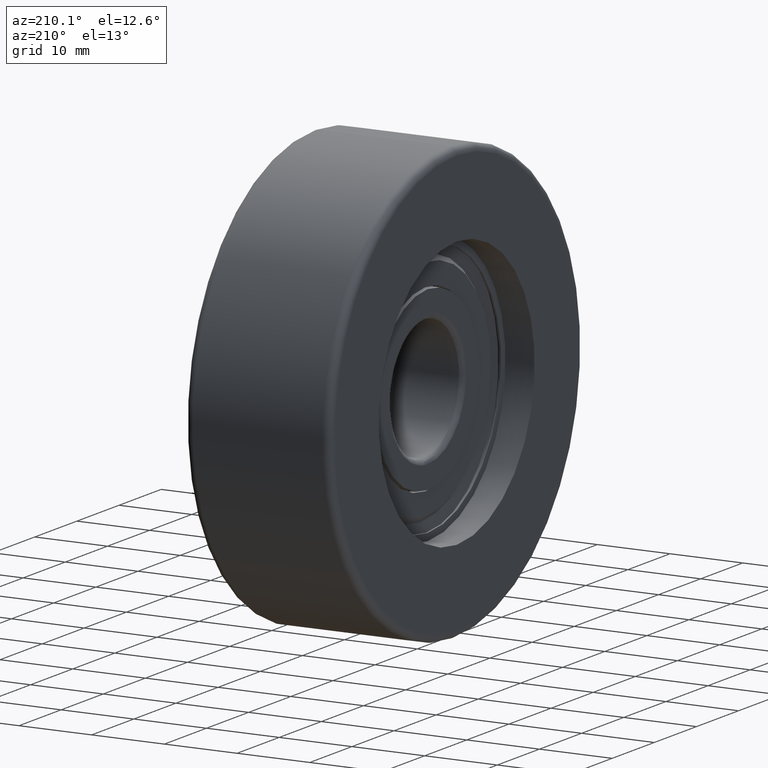
[diagram: clean part render]
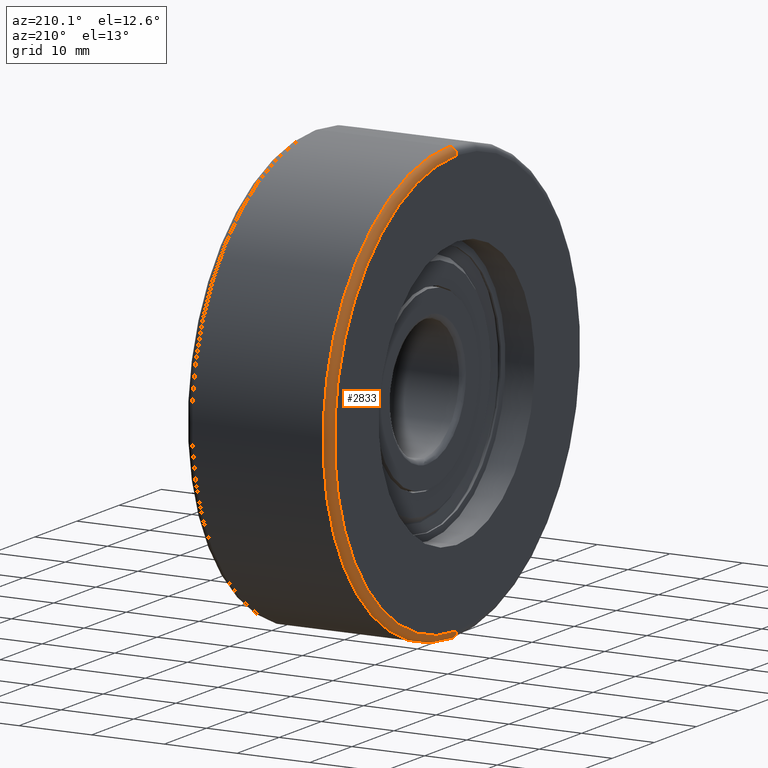
[diagram: same view with one face highlighted and labeled with its STEP entity id]
A machine part, auxiliary view. The second image highlights one B-rep face of the part: STEP entity #2833.
In plain terms, the highlighted toroidal blend (fillet) surface has major radius 29 mm and minor (blend) radius 1 mm.
Its self-contained STEP definition (entity closure, byte-faithful):
#85 = DIRECTION ( 'NONE',  ( -1.000000000000000000, -0.0000000000000000000, -0.0000000000000000000 ) ) ;
#118 = CIRCLE ( 'NONE', #4638, 28.99999999999999600 ) ;
#383 = AXIS2_PLACEMENT_3D ( 'NONE', #3193, #4908, #4460 ) ;
#483 = DIRECTION ( 'NONE',  ( 1.000000000000000000, 0.0000000000000000000, 0.0000000000000000000 ) ) ;
#544 = CARTESIAN_POINT ( 'NONE',  ( 0.0000000000000000000, 0.0000000000000000000, -28.99999999999999600 ) ) ;
#794 = CIRCLE ( 'NONE', #2465, 1.000000000000000900 ) ;
#857 = TOROIDAL_SURFACE ( 'NONE', #1578, 28.99999999999999600, 1.000000000000000000 ) ;
#948 = ORIENTED_EDGE ( 'NONE', *, *, #1405, .T. ) ;
#953 = DIRECTION ( 'NONE',  ( 0.0000000000000000000, 0.0000000000000000000, -1.000000000000000000 ) ) ;
#1405 = EDGE_CURVE ( 'NONE', #2002, #1672, #1595, .T. ) ;
#1578 = AXIS2_PLACEMENT_3D ( 'NONE', #2177, #483, #4770 ) ;
#1595 = CIRCLE ( 'NONE', #383, 1.000000000000000900 ) ;
#1672 = VERTEX_POINT ( 'NONE', #1819 ) ;
#1688 = EDGE_CURVE ( 'NONE', #2002, #5168, #118, .T. ) ;
#1771 = CARTESIAN_POINT ( 'NONE',  ( 1.000000000000000000, 0.0000000000000000000, 0.0000000000000000000 ) ) ;
#1819 = CARTESIAN_POINT ( 'NONE',  ( 1.000000000000000000, 0.0000000000000000000, 30.00000000000000000 ) ) ;
#1824 = ORIENTED_EDGE ( 'NONE', *, *, #2850, .F. ) ;
#2002 = VERTEX_POINT ( 'NONE', #5137 ) ;
#2145 = EDGE_CURVE ( 'NONE', #5168, #2969, #794, .T. ) ;
#2177 = CARTESIAN_POINT ( 'NONE',  ( 1.000000000000000000, 0.0000000000000000000, 0.0000000000000000000 ) ) ;
#2210 = CARTESIAN_POINT ( 'NONE',  ( 0.0000000000000000000, 0.0000000000000000000, 0.0000000000000000000 ) ) ;
#2465 = AXIS2_PLACEMENT_3D ( 'NONE', #4365, #3153, #5301 ) ;
#2547 = ORIENTED_EDGE ( 'NONE', *, *, #1688, .F. ) ;
#2618 = DIRECTION ( 'NONE',  ( 1.000000000000000000, 0.0000000000000000000, 0.0000000000000000000 ) ) ;
#2833 = ADVANCED_FACE ( 'NONE', ( #3152 ), #857, .T. ) ;
#2850 = EDGE_CURVE ( 'NONE', #2969, #1672, #3677, .T. ) ;
#2969 = VERTEX_POINT ( 'NONE', #5326 ) ;
#3152 = FACE_OUTER_BOUND ( 'NONE', #5411, .T. ) ;
#3153 = DIRECTION ( 'NONE',  ( 0.0000000000000000000, -1.000000000000000000, 0.0000000000000000000 ) ) ;
#3193 = CARTESIAN_POINT ( 'NONE',  ( 1.000000000000000000, 3.551475717527324000E-015, 28.99999999999999600 ) ) ;
#3677 = CIRCLE ( 'NONE', #4464, 30.00000000000000000 ) ;
#4365 = CARTESIAN_POINT ( 'NONE',  ( 1.000000000000000000, 0.0000000000000000000, -28.99999999999999600 ) ) ;
#4460 = DIRECTION ( 'NONE',  ( 0.0000000000000000000, 1.224646799147349500E-016, 1.000000000000000000 ) ) ;
#4464 = AXIS2_PLACEMENT_3D ( 'NONE', #1771, #2618, #4790 ) ;
#4568 = ORIENTED_EDGE ( 'NONE', *, *, #2145, .F. ) ;
#4638 = AXIS2_PLACEMENT_3D ( 'NONE', #2210, #85, #953 ) ;
#4770 = DIRECTION ( 'NONE',  ( 0.0000000000000000000, 0.0000000000000000000, -1.000000000000000000 ) ) ;
#4790 = DIRECTION ( 'NONE',  ( 0.0000000000000000000, 0.0000000000000000000, -1.000000000000000000 ) ) ;
#4908 = DIRECTION ( 'NONE',  ( 0.0000000000000000000, 1.000000000000000000, -1.224646799147353200E-016 ) ) ;
#5137 = CARTESIAN_POINT ( 'NONE',  ( 0.0000000000000000000, 3.612708057484691600E-015, 28.99999999999999600 ) ) ;
#5168 = VERTEX_POINT ( 'NONE', #544 ) ;
#5301 = DIRECTION ( 'NONE',  ( 0.0000000000000000000, 0.0000000000000000000, -1.000000000000000000 ) ) ;
#5326 = CARTESIAN_POINT ( 'NONE',  ( 1.000000000000000000, 3.673940397442059200E-015, -30.00000000000000000 ) ) ;
#5411 = EDGE_LOOP ( 'NONE', ( #2547, #948, #1824, #4568 ) ) ;